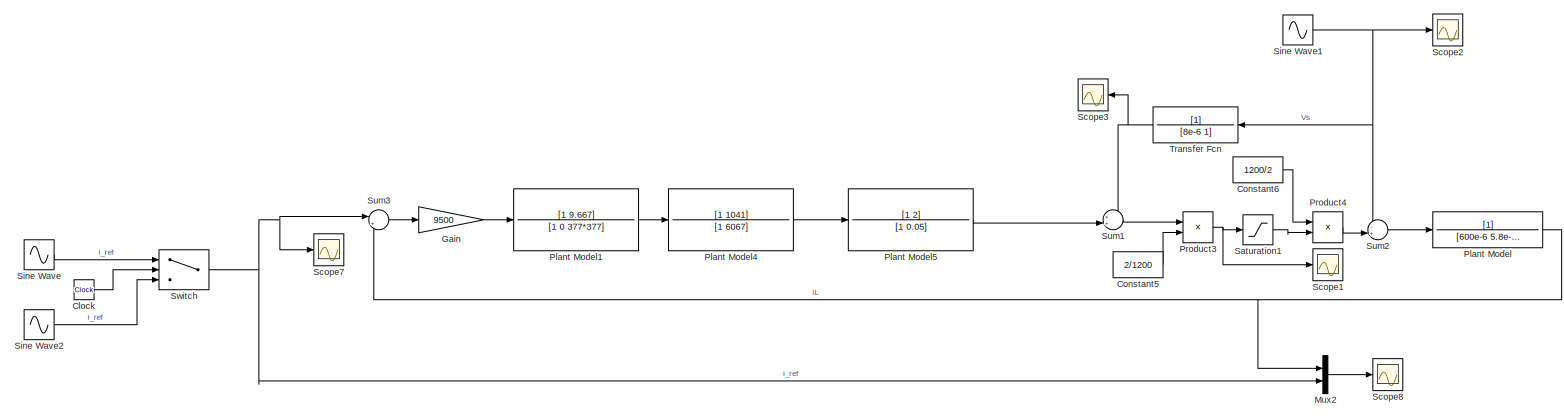
[diagram: root canvas - part 1/2, top left region]
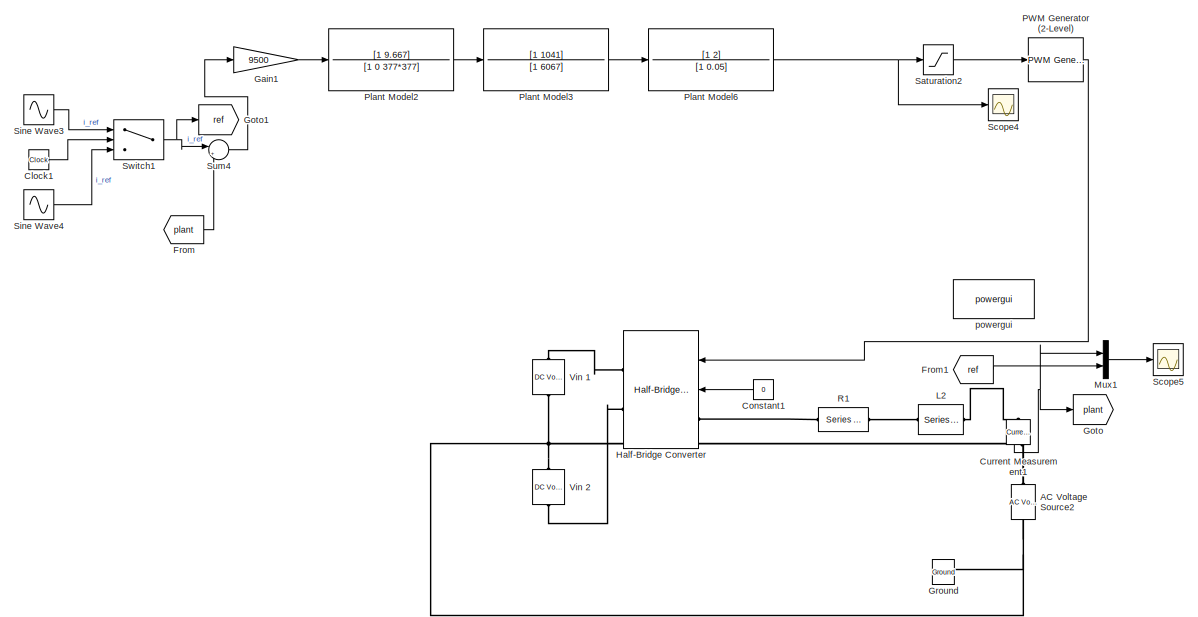
[diagram: root canvas - part 2/2, right side, full height]
MODEL slx_8452556232c1
KIND model
CONFIG AbsTol = auto
CONFIG EnableMultiTasking = off
CONFIG FixedStep = auto
CONFIG MaxStep = auto
CONFIG MinStep = auto
CONFIG RelTol = 1e-3
CONFIG SampleTimeConstraint = Unconstrained
CONFIG SolverName = VariableStepAuto
CONFIG StartTime = 0.0
CONFIG StopTime = 2
BLOCK [Reference] AC Voltage Source2  REF=powerlib/Electrical
Sources/AC Voltage Source
  NameLocation = right
  Ports = [0, 0, 0, 0, 0, 1, 1]
  SourceBlock = powerlib/Electrical\nSources/AC Voltage Source
  SourceProductBaseCode = PS
  SourceType = AC Voltage Source
BLOCK [Clock] Clock
BLOCK [Clock] Clock1
BLOCK [Constant] Constant1
  Value = 0
BLOCK [Constant] Constant5
  Value = 2/1200
BLOCK [Constant] Constant6
  Value = 1200/2
BLOCK [Reference] Current Measurement1  REF=powerlib/Measurements/Current Measurement
  NameLocation = right
  Ports = [0, 1, 0, 0, 0, 1, 1]
  SourceBlock = powerlib/Measurements/Current Measurement
  SourceProductBaseCode = PS
  SourceType = Current Measurement
  UserDataPersistent = on
BLOCK [From] From
  GotoTag = plant
BLOCK [From] From1
  GotoTag = ref
BLOCK [Gain] Gain
  Gain = 9500
BLOCK [Gain] Gain1
  Gain = 9500
BLOCK [Goto] Goto
  GotoTag = plant
BLOCK [Goto] Goto1
  GotoTag = ref
BLOCK [Reference] Ground  REF=powerlib/Elements/Ground
  NameLocation = right
  Ports = [0, 0, 0, 0, 0, 1]
  SourceBlock = powerlib/Elements/Ground
  SourceProductBaseCode = PS
  SourceType = Ground
BLOCK [Reference] Half-Bridge Converter  REF=powerlib/Power
Electronics/Half-Bridge Converter
  Ports = [2, 0, 0, 0, 0, 1, 2]
  SourceBlock = powerlib/Power\nElectronics/Half-Bridge Converter
  SourceProductBaseCode = PS
  SourceType = Half-Bridge Converter
BLOCK [Reference] L2  REF=powerlib/Elements/Series RLC Branch
  Ports = [0, 0, 0, 0, 0, 1, 1]
  SourceBlock = powerlib/Elements/Series RLC Branch
  SourceProductBaseCode = PS
  SourceType = Series RLC Branch
BLOCK [Mux] Mux1
  DisplayOption = bar
  Inputs = 2
  Ports = [2, 1]
BLOCK [Mux] Mux2
  DisplayOption = bar
  Inputs = 2
  Ports = [2, 1]
BLOCK [Reference] PWM Generator (2-Level)  REF=powerlib_meascontrol/Pulse & Signal
Generators/PWM Generator
(2-Level)
  Ports = [1, 1]
  SourceBlock = powerlib_meascontrol/Pulse & Signal\nGenerators/PWM Generator\n(2-Level)
  SourceProductBaseCode = PS
  SourceType = PWM Generator (2-Level)
BLOCK [TransferFcn] Plant Model
  Denominator = [600e-6 5.8e-3]
BLOCK [TransferFcn] Plant Model1
  Denominator = [1 0 377*377]
  Numerator = [1 9.667]
BLOCK [TransferFcn] Plant Model2
  Denominator = [1 0 377*377]
  Numerator = [1 9.667]
BLOCK [TransferFcn] Plant Model3
  Denominator = [1 6067]
  Numerator = [1 1041]
BLOCK [TransferFcn] Plant Model4
  Denominator = [1 6067]
  Numerator = [1 1041]
BLOCK [TransferFcn] Plant Model5
  Denominator = [1 0.05]
  Numerator = [1 2]
BLOCK [TransferFcn] Plant Model6
  Denominator = [1 0.05]
  Numerator = [1 2]
BLOCK [Product] Product3
  Ports = [2, 1]
BLOCK [Product] Product4
  Ports = [2, 1]
BLOCK [Reference] R1  REF=powerlib/Elements/Series RLC Branch
  Ports = [0, 0, 0, 0, 0, 1, 1]
  SourceBlock = powerlib/Elements/Series RLC Branch
  SourceProductBaseCode = PS
  SourceType = Series RLC Branch
BLOCK [Saturate] Saturation1
  LowerLimit = -1
  UpperLimit = 1
BLOCK [Saturate] Saturation2
  LowerLimit = -1
  UpperLimit = 1
BLOCK [Scope] Scope1
  Floating = off
  NumInputPorts = 1
  Ports = [1]
  ScopeSpecificationString = Simulink.scopes.TimeScopeBlockCfg('CurrentConfiguration', extmgr.ConfigurationSet(extmgr.Configuration('Core','General UI',true),extmgr.Configuration('Core','Source UI',true),extmgr.Configuration('Sources','WiredSimulink',true,'DataLoggingVariableName','ScopeData1'),extmgr.Configuration('Visuals','Time Domain',true,'SerializedDisplays',{struct('MinYLimReal','-0.89504','MaxYLimReal','0.84438','YLab...<+1466ch>
BLOCK [Scope] Scope2
  Floating = off
  NumInputPorts = 1
  Ports = [1]
  ScopeSpecificationString = Simulink.scopes.TimeScopeBlockCfg('CurrentConfiguration', extmgr.ConfigurationSet(extmgr.Configuration('Core','General UI',true),extmgr.Configuration('Core','Source UI',true),extmgr.Configuration('Sources','WiredSimulink',true,'DataLoggingVariableName','ScopeData2'),extmgr.Configuration('Visuals','Time Domain',true,'SerializedDisplays',{struct('MinYLimReal','-499.99997','MaxYLimReal','499.99993','...<+1446ch>
BLOCK [Scope] Scope3
  Floating = off
  NameLocation = top
  NumInputPorts = 1
  Ports = [1]
  ScopeSpecificationString = Simulink.scopes.TimeScopeBlockCfg('CurrentConfiguration', extmgr.ConfigurationSet(extmgr.Configuration('Core','General UI',true),extmgr.Configuration('Core','Source UI',true),extmgr.Configuration('Sources','WiredSimulink',true,'DataLoggingVariableName','ScopeData3'),extmgr.Configuration('Visuals','Time Domain',true,'SerializedDisplays',{struct('MinYLimReal','-499.99882','MaxYLimReal','499.99','YLa...<+1450ch>
BLOCK [Scope] Scope4
  Floating = off
  NumInputPorts = 1
  Ports = [1]
  ScopeSpecificationString = Simulink.scopes.TimeScopeBlockCfg('CurrentConfiguration', extmgr.ConfigurationSet(extmgr.Configuration('Core','General UI',true),extmgr.Configuration('Core','Source UI',true),extmgr.Configuration('Sources','WiredSimulink',true,'DataLoggingVariableName','ScopeData1'),extmgr.Configuration('Visuals','Time Domain',true,'SerializedDisplays',{struct('MinYLimReal','-58.6456','MaxYLimReal','21.34212','YLa...<+1472ch>
BLOCK [Scope] Scope5
  Floating = off
  NumInputPorts = 1
  Ports = [1]
  ScopeSpecificationString = Simulink.scopes.TimeScopeBlockCfg('CurrentConfiguration', extmgr.ConfigurationSet(extmgr.Configuration('Core','General UI',true),extmgr.Configuration('Core','Source UI',true),extmgr.Configuration('Sources','WiredSimulink',true,'DataLoggingVariableName','circuitmodel','DataLogging',true,'DataLoggingSaveFormat','Array'),extmgr.Configuration('Visuals','Time Domain',true,'SerializedDisplays',{struct('...<+1556ch>
BLOCK [Scope] Scope7
  Floating = off
  NumInputPorts = 1
  Ports = [1]
  ScopeSpecificationString = Simulink.scopes.TimeScopeBlockCfg('CurrentConfiguration', extmgr.ConfigurationSet(extmgr.Configuration('Core','General UI',true),extmgr.Configuration('Core','Source UI',true),extmgr.Configuration('Sources','WiredSimulink',true,'DataLoggingVariableName','ScopeData6'),extmgr.Configuration('Visuals','Time Domain',true,'SerializedDisplays',{struct('MinYLimReal','-187.5','MaxYLimReal','187.5','YLabelRe...<+1454ch>
BLOCK [Scope] Scope8
  Floating = off
  NumInputPorts = 1
  Ports = [1]
  ScopeSpecificationString = Simulink.scopes.TimeScopeBlockCfg('CurrentConfiguration', extmgr.ConfigurationSet(extmgr.Configuration('Core','General UI',true),extmgr.Configuration('Core','Source UI',true),extmgr.Configuration('Sources','WiredSimulink',true,'DataLoggingVariableName','stuff','DataLogging',true,'DataLoggingSaveFormat','Array'),extmgr.Configuration('Visuals','Time Domain',true,'SerializedDisplays',{struct('MinYLim...<+1502ch>
BLOCK [Sin] Sine Wave
  Amplitude = 150
  Frequency = 377
  Phase = -pi/3
  Ports = [0, 1]
  SampleTime = 0
BLOCK [Sin] Sine Wave1
  Amplitude = 400
  Frequency = 377
  Phase = -pi/3
  Ports = [0, 1]
  SampleTime = 0
BLOCK [Sin] Sine Wave2
  Amplitude = 100
  Frequency = 377
  Phase = -pi/3
  Ports = [0, 1]
  SampleTime = 0
BLOCK [Sin] Sine Wave3
  Amplitude = 150
  Frequency = 377
  Phase = -pi/3
  Ports = [0, 1]
  SampleTime = 0
BLOCK [Sin] Sine Wave4
  Amplitude = 100
  Frequency = 377
  Phase = -pi/3
  Ports = [0, 1]
  SampleTime = 0
BLOCK [Sum] Sum1
  Inputs = ++|
  Ports = [2, 1]
BLOCK [Sum] Sum2
  Inputs = -+|
  Ports = [2, 1]
BLOCK [Sum] Sum3
  Inputs = |+-
  Ports = [2, 1]
BLOCK [Sum] Sum4
  Inputs = |+-
  Ports = [2, 1]
BLOCK [Switch] Switch
  Criteria = u2 > Threshold
  InputSameDT = off
  SaturateOnIntegerOverflow = off
  Threshold = 1
BLOCK [Switch] Switch1
  Criteria = u2 > Threshold
  InputSameDT = off
  SaturateOnIntegerOverflow = off
  Threshold = 1
BLOCK [TransferFcn] Transfer Fcn
  Denominator = [8e-6 1]
  NameLocation = top
BLOCK [Reference] Vin 1  REF=powerlib/Electrical
Sources/DC Voltage Source
  NameLocation = right
  Ports = [0, 0, 0, 0, 0, 1, 1]
  SourceBlock = powerlib/Electrical\nSources/DC Voltage Source
  SourceProductBaseCode = PS
  SourceType = DC Voltage Source
BLOCK [Reference] Vin 2  REF=powerlib/Electrical
Sources/DC Voltage Source
  NameLocation = right
  Ports = [0, 0, 0, 0, 0, 1, 1]
  SourceBlock = powerlib/Electrical\nSources/DC Voltage Source
  SourceProductBaseCode = PS
  SourceType = DC Voltage Source
BLOCK [Reference] powergui  REF=powerlib/powergui
  Ports = []
  Priority = 1
  SourceBlock = powerlib/powergui
  SourceProductBaseCode = PS
  SourceType = PSB option menu block
LINE Clock1:1 -> Switch1:2
LINE Clock:1 -> Switch:2
LINE Constant1:1 -> Half-Bridge Converter:2
LINE Constant5:1 -> Product3:2
LINE Constant6:1 -> Product4:1
NET Current Measurement1:1 -> Goto:1, Mux1:1
LINE From1:1 -> Mux1:2
LINE From:1 -> Sum4:2
LINE Gain1:1 -> Plant Model2:1
LINE Gain:1 -> Plant Model1:1
LINE Mux1:1 -> Scope5:1
LINE Mux2:1 -> Scope8:1
LINE PWM Generator (2-Level):1 -> Half-Bridge Converter:1
LINE Plant Model1:1 -> Plant Model4:1
LINE Plant Model2:1 -> Plant Model3:1
LINE Plant Model3:1 -> Plant Model6:1
LINE Plant Model4:1 -> Plant Model5:1
LINE Plant Model5:1 -> Sum1:2
NET Plant Model6:1 -> Saturation2:1, Scope4:1
NET Plant Model:1 -> Mux2:1, Sum3:2
NET Product3:1 -> Saturation1:1, Scope1:1
LINE Product4:1 -> Sum2:2
LINE Saturation1:1 -> Product4:2
LINE Saturation2:1 -> PWM Generator (2-Level):1
NET Sine Wave1:1 -> Scope2:1, Sum2:1, Transfer Fcn:1
LINE Sine Wave2:1 -> Switch:3
LINE Sine Wave3:1 -> Switch1:1
LINE Sine Wave4:1 -> Switch1:3
LINE Sine Wave:1 -> Switch:1
LINE Sum1:1 -> Product3:1
LINE Sum2:1 -> Plant Model:1
LINE Sum3:1 -> Gain:1
LINE Sum4:1 -> Gain1:1
NET Switch1:1 -> Goto1:1, Sum4:1
NET Switch:1 -> Mux2:2, Scope7:1, Sum3:1
NET Transfer Fcn:1 -> Scope3:1, Sum1:1
PNET net1: AC Voltage Source2:LConn1 -- Ground:LConn1 -- Vin 1:LConn1 -- Vin 2:RConn1
PLINE AC Voltage Source2:RConn1 -- Current Measurement1:RConn1
PLINE Current Measurement1:LConn1 -- L2:RConn1
PLINE Half-Bridge Converter:LConn1 -- R1:LConn1
PLINE Half-Bridge Converter:RConn1 -- Vin 1:RConn1
PLINE Half-Bridge Converter:RConn2 -- Vin 2:LConn1
PLINE L2:LConn1 -- R1:RConn1
note: NET lines group one-source signal fan-out (src -> all destinations, sorted); 1:1 wires keep LINE; PNET lines group multi-terminal physical nets as a canonical sorted terminal list (undirected conserving connections); 2-terminal nets keep the pairwise PLINE form
